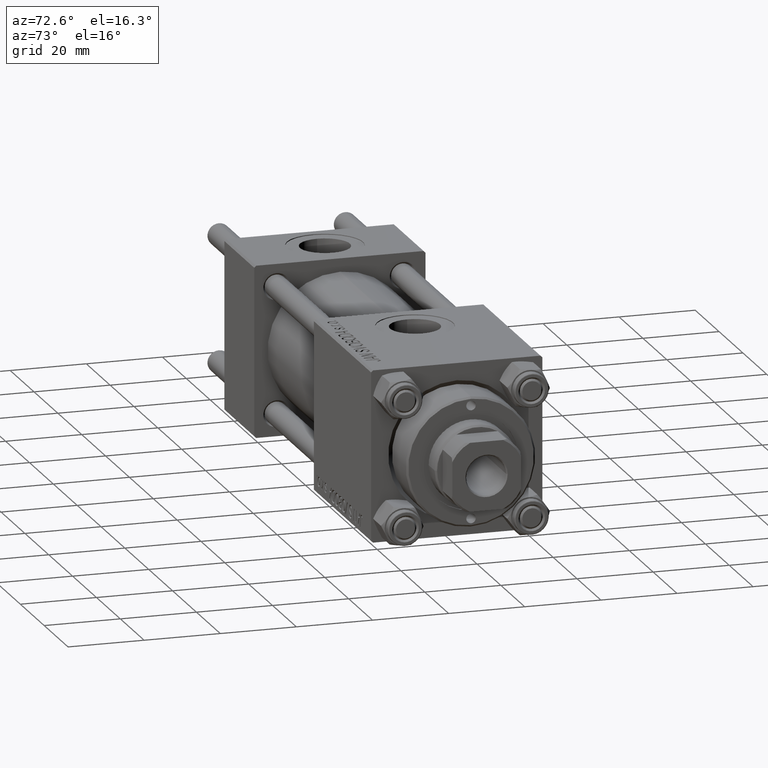
[diagram: clean part render]
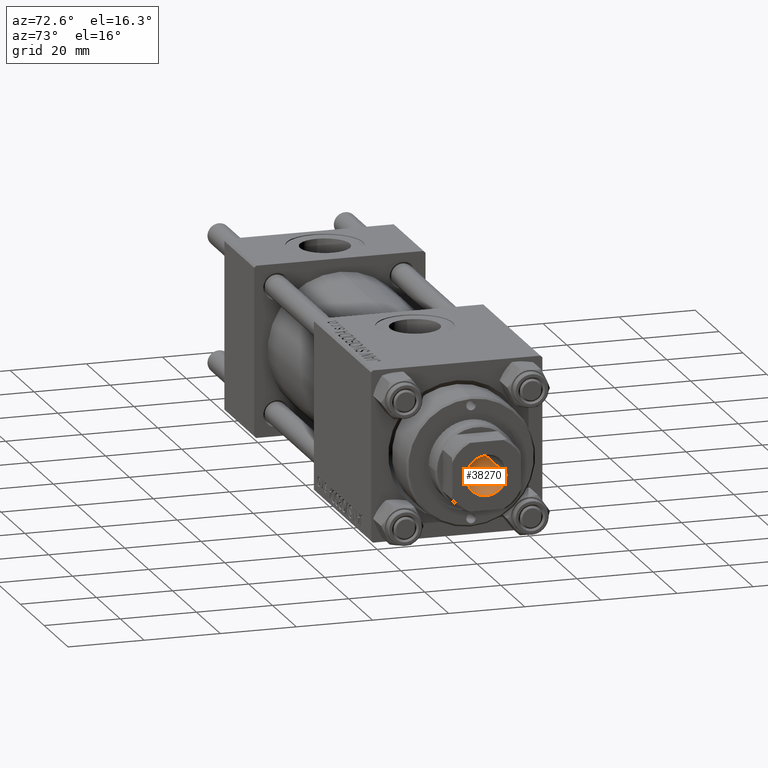
[diagram: same view with one face highlighted and labeled with its STEP entity id]
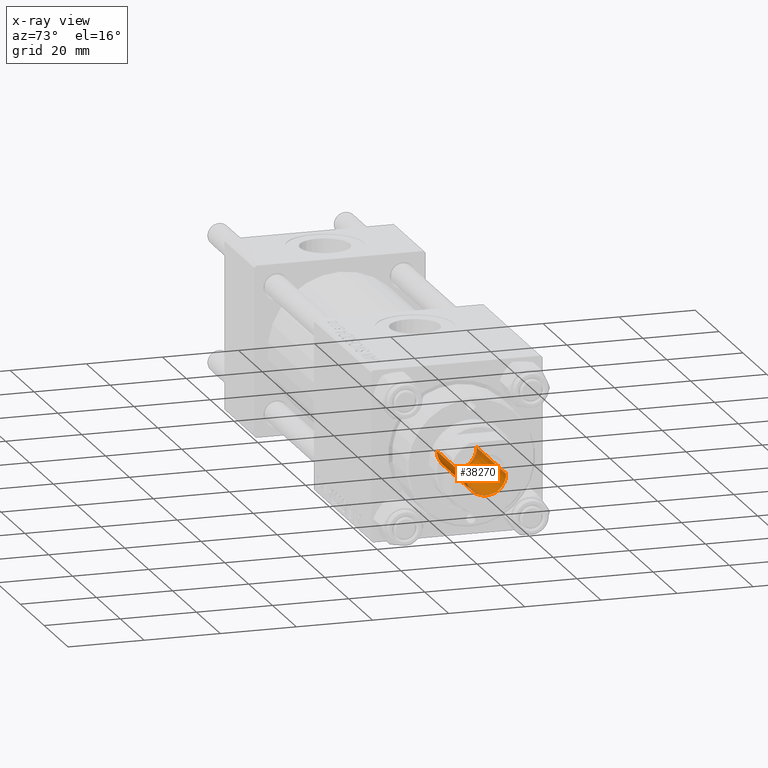
[diagram: x-ray of the same camera — body ghosted, the highlighted face saturated]
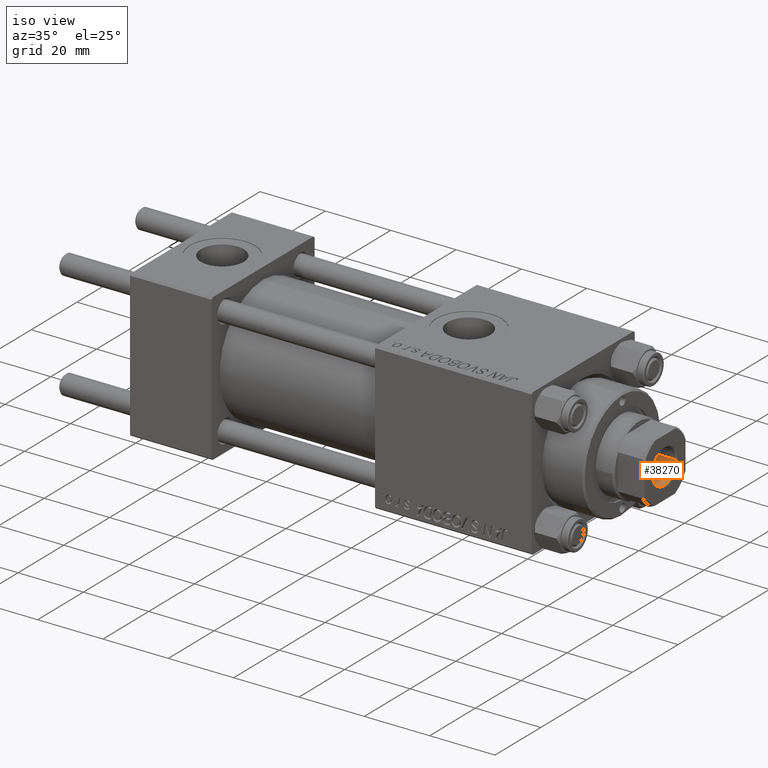
[diagram: same view with one face highlighted and labeled with its STEP entity id]
A machine part, auxiliary view. The second image highlights one B-rep face of the part: STEP entity #38270.
The next image is the same camera in x-ray: the body ghosted, the highlighted face saturated — about 8% of this face is hidden behind the body in this view.
A second angle (iso view) of the same face is appended — the face is thin or edge-on in the first view.
In plain terms, the highlighted cylindrical surface (edge-blend (fillet) strip) has radius 5.25 mm, axis along (1, 0, -0).
Its self-contained STEP definition (entity closure, byte-faithful):
#1343 = VERTEX_POINT ( 'NONE', #27649 ) ;
#1908 = DIRECTION ( 'NONE',  ( -0.000000000000000000, -0.000000000000000000, 1.000000000000000000 ) ) ;
#1937 = CYLINDRICAL_SURFACE ( 'NONE', #47247, 5.249999999999997335 ) ;
#2921 = ORIENTED_EDGE ( 'NONE', *, *, #8217, .F. ) ;
#3455 = CARTESIAN_POINT ( 'NONE',  ( 5.249999999999997335, 0.000000000000000000, 122.6999999999999744 ) ) ;
#4098 = ORIENTED_EDGE ( 'NONE', *, *, #18147, .T. ) ;
#5188 = CARTESIAN_POINT ( 'NONE',  ( 5.249999999999997335, 0.000000000000000000, 123.0000000000000000 ) ) ;
#5472 = DIRECTION ( 'NONE',  ( 1.000000000000000000, 0.000000000000000000, 0.000000000000000000 ) ) ;
#7308 = VERTEX_POINT ( 'NONE', #3455 ) ;
#8217 = EDGE_CURVE ( 'NONE', #47773, #47761, #8598, .T. ) ;
#8598 = CIRCLE ( 'NONE', #40931, 5.249999999999995559 ) ;
#10248 = CIRCLE ( 'NONE', #48199, 5.249999999999997335 ) ;
#17258 = CARTESIAN_POINT ( 'NONE',  ( -5.249999999999995559, 6.429395695523600208E-16, 98.00000000000000000 ) ) ;
#17306 = EDGE_LOOP ( 'NONE', ( #23524, #2921, #4098, #47185 ) ) ;
#17622 = CARTESIAN_POINT ( 'NONE',  ( 0.000000000000000000, 0.000000000000000000, 123.0000000000000000 ) ) ;
#18147 = EDGE_CURVE ( 'NONE', #47773, #7308, #36577, .T. ) ;
#19973 = CARTESIAN_POINT ( 'NONE',  ( -5.249999999999997335, 6.429395695523601195E-16, 123.0000000000000000 ) ) ;
#20118 = VECTOR ( 'NONE', #1908, 1000.000000000000000 ) ;
#23524 = ORIENTED_EDGE ( 'NONE', *, *, #37127, .F. ) ;
#23939 = CARTESIAN_POINT ( 'NONE',  ( 0.000000000000000000, 0.000000000000000000, 122.6999999999999744 ) ) ;
#24965 = DIRECTION ( 'NONE',  ( -0.000000000000000000, -0.000000000000000000, 1.000000000000000000 ) ) ;
#25352 = CARTESIAN_POINT ( 'NONE',  ( 5.249999999999995559, 0.000000000000000000, 98.00000000000000000 ) ) ;
#27323 = LINE ( 'NONE', #19973, #38361 ) ;
#27649 = CARTESIAN_POINT ( 'NONE',  ( -5.249999999999997335, 6.429395695523601195E-16, 122.6999999999999744 ) ) ;
#28318 = DIRECTION ( 'NONE',  ( 1.000000000000000000, 0.000000000000000000, 0.000000000000000000 ) ) ;
#32119 = CARTESIAN_POINT ( 'NONE',  ( 0.000000000000000000, 0.000000000000000000, 98.00000000000000000 ) ) ;
#35585 = DIRECTION ( 'NONE',  ( 1.000000000000000000, 0.000000000000000000, 0.000000000000000000 ) ) ;
#36577 = LINE ( 'NONE', #5188, #20118 ) ;
#37116 = FACE_OUTER_BOUND ( 'NONE', #17306, .T. ) ;
#37127 = EDGE_CURVE ( 'NONE', #47761, #1343, #27323, .T. ) ;
#38270 = ADVANCED_FACE ( 'NONE', ( #37116 ), #1937, .F. ) ;
#38361 = VECTOR ( 'NONE', #42774, 1000.000000000000000 ) ;
#39621 = DIRECTION ( 'NONE',  ( 0.000000000000000000, 0.000000000000000000, 1.000000000000000000 ) ) ;
#39703 = DIRECTION ( 'NONE',  ( -0.000000000000000000, -0.000000000000000000, 1.000000000000000000 ) ) ;
#40931 = AXIS2_PLACEMENT_3D ( 'NONE', #32119, #39703, #28318 ) ;
#42774 = DIRECTION ( 'NONE',  ( -0.000000000000000000, -0.000000000000000000, 1.000000000000000000 ) ) ;
#42943 = EDGE_CURVE ( 'NONE', #7308, #1343, #10248, .T. ) ;
#47185 = ORIENTED_EDGE ( 'NONE', *, *, #42943, .T. ) ;
#47247 = AXIS2_PLACEMENT_3D ( 'NONE', #17622, #24965, #5472 ) ;
#47761 = VERTEX_POINT ( 'NONE', #17258 ) ;
#47773 = VERTEX_POINT ( 'NONE', #25352 ) ;
#48199 = AXIS2_PLACEMENT_3D ( 'NONE', #23939, #39621, #35585 ) ;